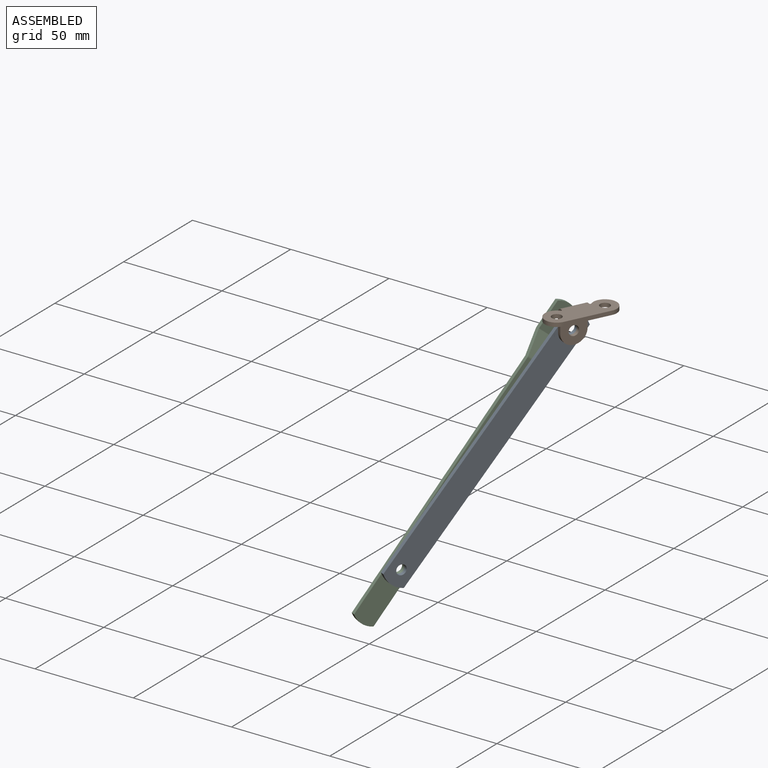
[diagram: assembled view]
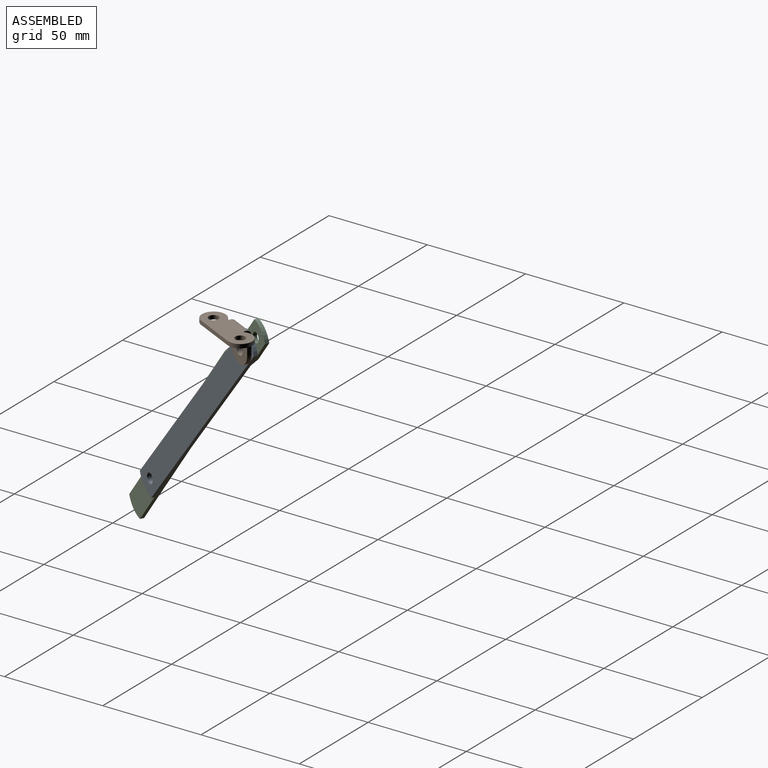
[diagram: assembled view, second angle]
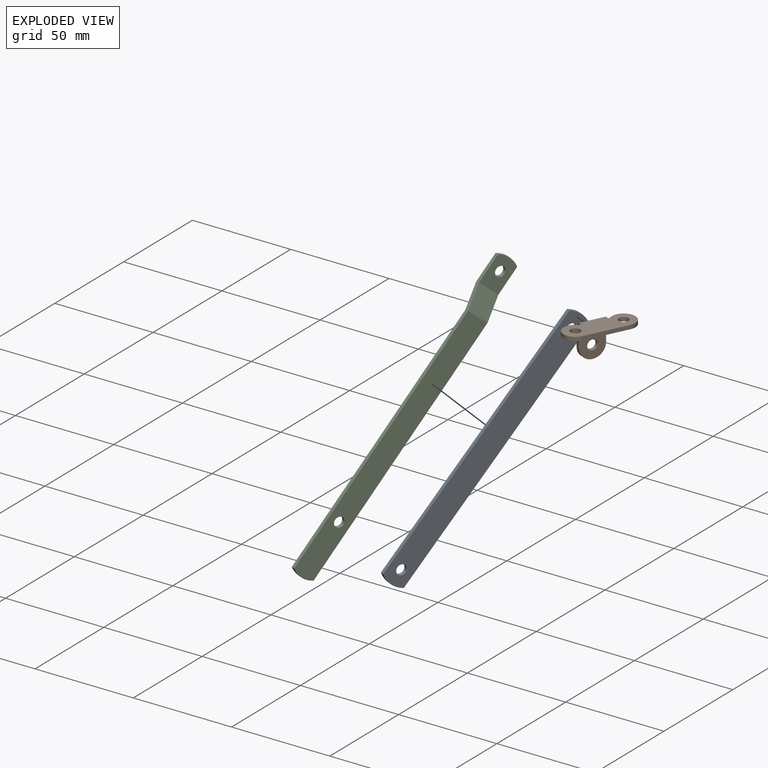
[diagram: exploded view]
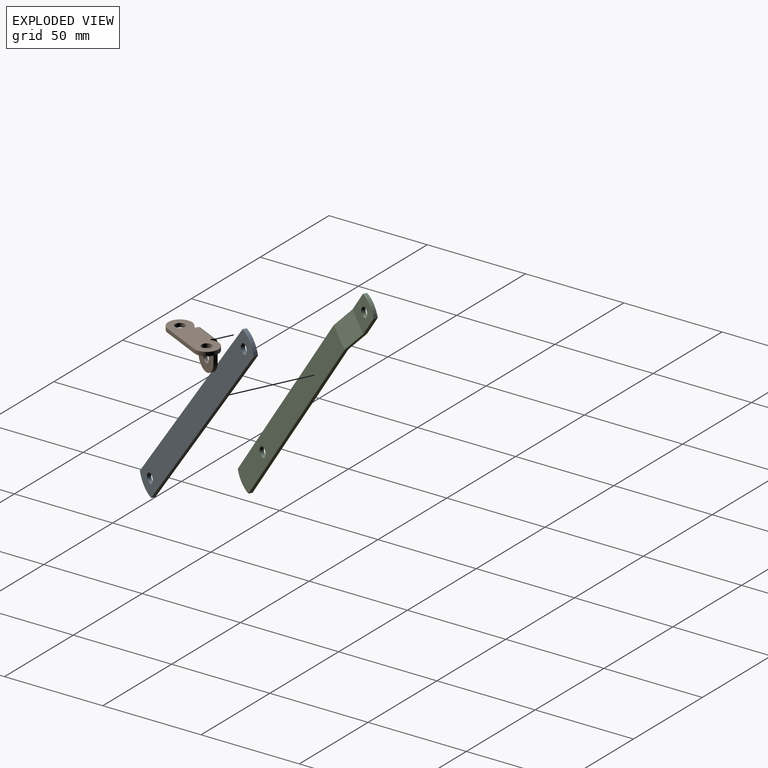
[diagram: exploded view, second angle]
ASSEMBLY  parts=3 mates=4
PART A: 8 faces, bbox 2x138x13 mm
  f0: plane 134.52x2mm, normal (0,0,1), area 269mm2, adj f1,f3,f4,f5
  f1: cylinder r=13mm len=13mm, axis (-1,0,0), area 27.2mm2, adj f0,f2,f4,f5
  f2: plane 134.52x2mm, normal (0,0,-1), area 269mm2, adj f1,f3,f4,f5
  f3: cylinder r=13mm len=13mm, axis (-1,0,0), area 27.2mm2, adj f0,f2,f4,f5
  f4: plane 138x13mm, normal (1,0,0), area 1740.1mm2, adj f0,f1,f2,f3,f6,f7
  f5: plane 138x13mm, normal (-1,0,0), area 1740.1mm2, adj f0,f1,f2,f3,f6,f7
  f6: cylinder r=2.5mm len=5mm, axis (-1,0,0), area 31.4mm2, adj f4,f5
  f7: cylinder r=2.5mm len=5mm, axis (-1,0,0), area 31.4mm2, adj f4,f5
PART B: 21 faces, bbox 14x35x18 mm
  f0: cylinder r=0.5mm len=2mm, axis (0,0,1), area 2.3mm2, adj f1,f8,f9,f10
  f1: plane 2x0.81mm, normal (0,-1,0), area 1.6mm2, adj f0,f9,f10,f18
  f2: plane 2x0.81mm, normal (0,1,0), area 1.6mm2, adj f3,f9,f10,f17
  f3: cylinder r=0.5mm len=2mm, axis (0,0,1), area 2.3mm2, adj f2,f4,f9,f10
  f4: cylinder r=6mm len=12mm, axis (0,0,1), area 46.9mm2, adj f3,f5,f9,f10
  f5: plane 23x2mm, normal (1,0,0), area 46mm2, adj f4,f8,f9,f10
  f6: cylinder r=2.5mm len=5mm, axis (0,0,1), area 31.4mm2, adj f9,f10
  f7: cylinder r=2.5mm len=5mm, axis (0,0,1), area 31.4mm2, adj f9,f10
  f8: cylinder r=6mm len=12mm, axis (0,0,1), area 46.9mm2, adj f0,f5,f9,f10
  f9: plane 35x12mm, normal (0,0,-1), area 336.1mm2, adj f0,f1,f2,f3,f4,f5,f6,f7
  f10: plane 35x12mm, normal (0,0,1), area 336.1mm2, adj f0,f1,f2,f3,f4,f5,f6,f7
  f11: plane 9x2mm, normal (0,1,0), area 18mm2, adj f14,f15,f16,f17
  f12: cylinder r=2.5mm len=5mm, axis (1,0,0), area 31.4mm2, adj f14,f15
  f13: plane 9x2mm, normal (0,-1,0), area 18mm2, adj f14,f15,f16,f18
  f14: plane 15.5x13mm, normal (1,0,0), area 163.7mm2, adj f11,f12,f13,f16,f20
  f15: plane 15.5x13mm, normal (-1,0,0), area 163.7mm2, adj f11,f12,f13,f16,f19
  f16: cylinder r=6.5mm len=13mm, axis (1,0,0), area 40.8mm2, adj f11,f13,f14,f15
  f17: plane 2.5x2.5mm, normal (0,1,0), area 4.7mm2, adj f2,f11,f19,f20
  f18: plane 2.5x2.5mm, normal (0,-1,0), area 4.7mm2, adj f1,f13,f19,f20
  f19: cylinder r=2.5mm len=13mm, axis (0,1,0), area 51.1mm2, adj f10,f15,f17,f18
  f20: cylinder r=0.5mm len=13mm, axis (0,1,0), area 10.2mm2, adj f9,f14,f17,f18
PART C: 24 faces, bbox 6.7x159.1x12 mm
  f0: plane 129.3x2mm, normal (0,0,-1), area 258.6mm2, adj f1,f4,f5,f20
  f1: cylinder r=12mm len=12mm, axis (1,0,0), area 25.1mm2, adj f0,f3,f4,f5
  f2: cylinder r=2.5mm len=5mm, axis (1,0,0), area 31.4mm2, adj f4,f5
  f3: plane 129.3x2mm, normal (0,0,1), area 258.6mm2, adj f1,f4,f5,f21
  f4: plane 130.91x12mm, normal (-1,0,0), area 1545mm2, adj f0,f1,f2,f3,f22
  f5: plane 130.91x12mm, normal (1,0,0), area 1545mm2, adj f0,f1,f2,f3,f23
  f6: plane 12.33x6.33mm, normal (0,0,-1), area 24.9mm2, adj f8,f9,f17,f20
  f7: plane 12.33x6.33mm, normal (0,0,1), area 24.9mm2, adj f8,f9,f16,f21
  f8: plane 12x11.62mm, normal (-0.93,0.36,0), area 149.3mm2, adj f6,f7,f19,f22
  f9: plane 12x11.62mm, normal (0.93,-0.36,0), area 149.3mm2, adj f6,f7,f18,f23
  f10: plane 13.93x2mm, normal (0,0,1), area 27.9mm2, adj f11,f14,f15,f16
  f11: cylinder r=12mm len=12mm, axis (-1,0,0), area 25.1mm2, adj f10,f13,f14,f15
  f12: cylinder r=2.5mm len=5mm, axis (-1,0,0), area 31.4mm2, adj f14,f15
  f13: plane 13.93x2mm, normal (0,0,-1), area 27.9mm2, adj f11,f14,f15,f17
  f14: plane 15.54x12mm, normal (-1,0,0), area 160.6mm2, adj f10,f11,f12,f13,f19
  f15: plane 15.54x12mm, normal (1,0,0), area 160.6mm2, adj f10,f11,f12,f13,f18
  f16: plane 2.03x0.9mm, normal (0,0,1), area 1.1mm2, adj f7,f10,f18,f19
  f17: plane 2.03x0.9mm, normal (0,0,-1), area 1.1mm2, adj f6,f13,f18,f19
  f18: cylinder r=2.5mm len=12mm, axis (0,0,1), area 11mm2, adj f9,f15,f16,f17
  f19: cylinder r=0.5mm len=12mm, axis (0,0,1), area 2.2mm2, adj f8,f14,f16,f17
  f20: plane 2.03x0.9mm, normal (0,0,-1), area 1.1mm2, adj f0,f6,f22,f23
  f21: plane 2.03x0.9mm, normal (0,0,1), area 1.1mm2, adj f3,f7,f22,f23
  f22: cylinder r=2.5mm len=12mm, axis (0,0,-1), area 11mm2, adj f4,f8,f20,f21
  f23: cylinder r=0.5mm len=12mm, axis (0,0,-1), area 2.2mm2, adj f5,f9,f20,f21
PLACE A rot(axis=(0.87,-0.2,-0.45),55deg) t=(-31.85,-42.3,-57.78)mm
PLACE B rot(axis=(0,0,-1),26.1deg) t=(-5.06,-10.33,-2)mm
PLACE C rot(axis=(0.21,0.89,0.42),169deg) t=(-39.14,-57.17,-75.2)mm
MATE cylindrical A.f7 <-> B.f12  axis (-0.9,0.44,0) through (-14.04,-5.93,-11.5)mm
MATE cylindrical C.f2 <-> A.f6  axis (-0.9,0.44,0) through (-50.57,-78.23,-104.07)mm
MATE planar A.f4 <-> B.f15  axis (0.9,-0.44,0) through (-12.73,-7.8,-2.89)mm
MATE planar C.f4 <-> A.f5  axis (0.9,-0.44,0) through (-40.96,-60.88,-70.79)mm
